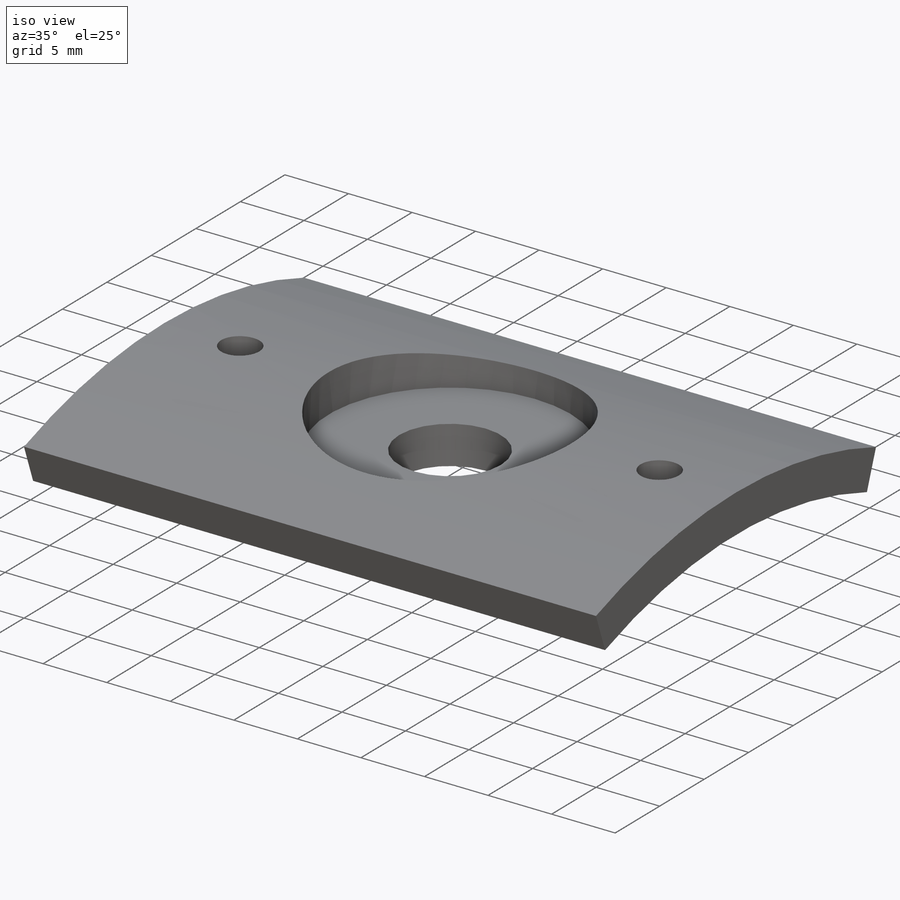
[diagram: iso view]
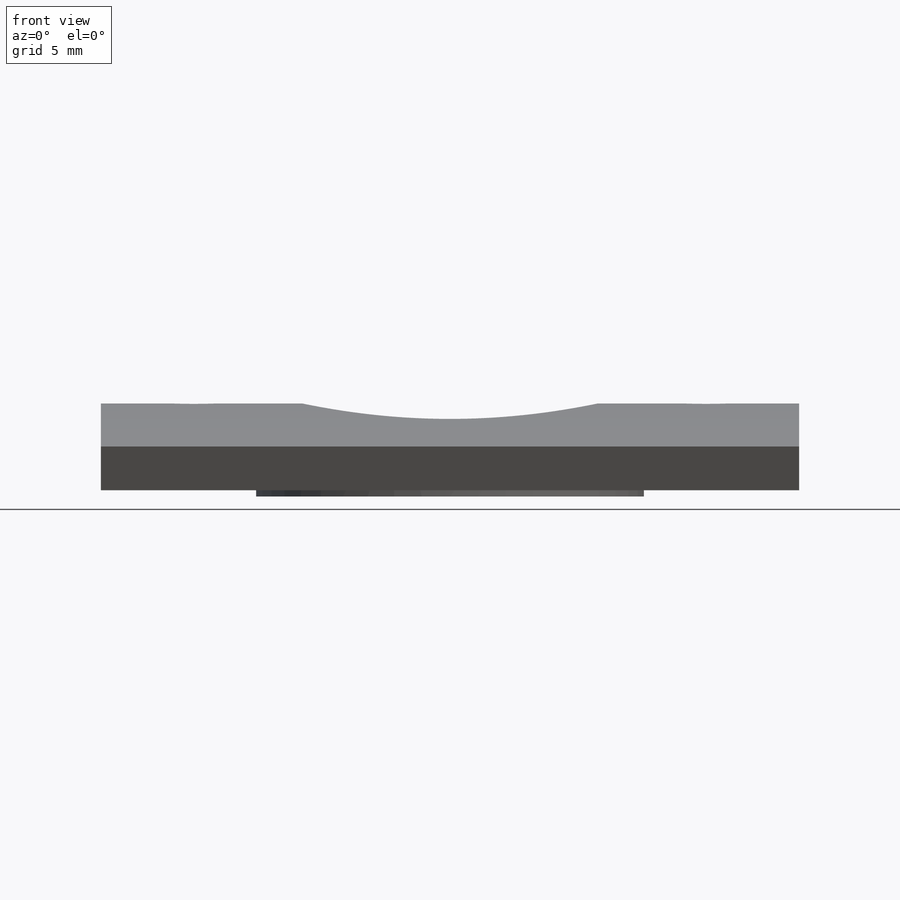
[diagram: front view]
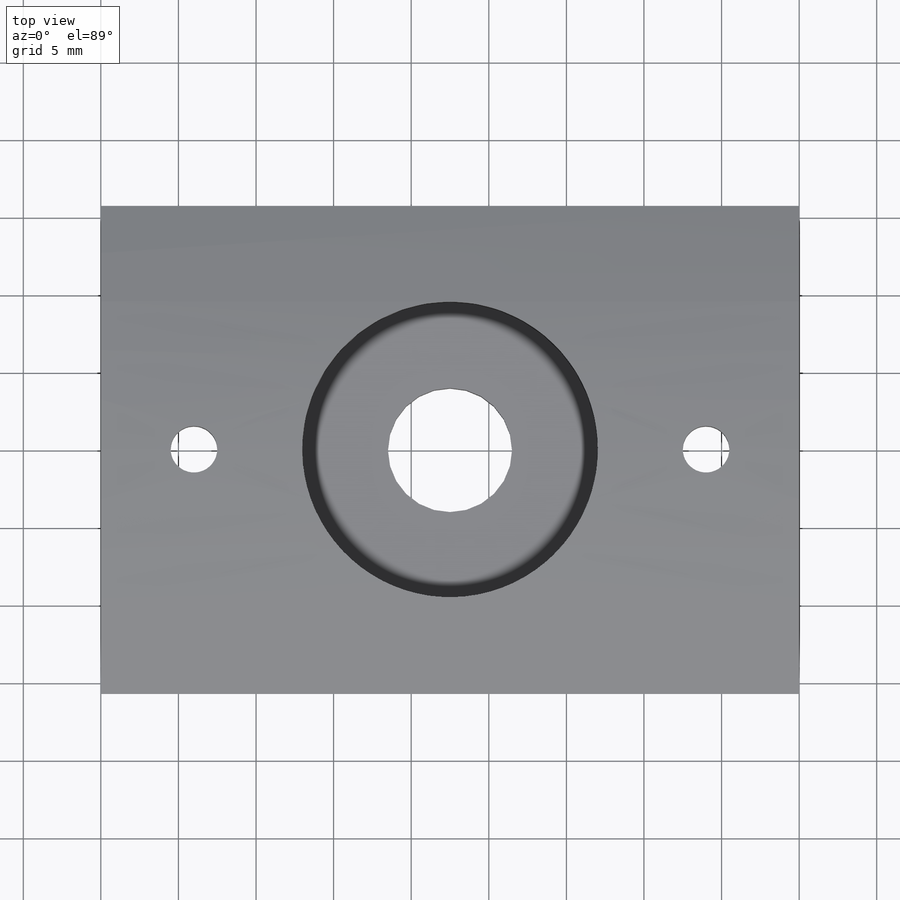
[diagram: top view]
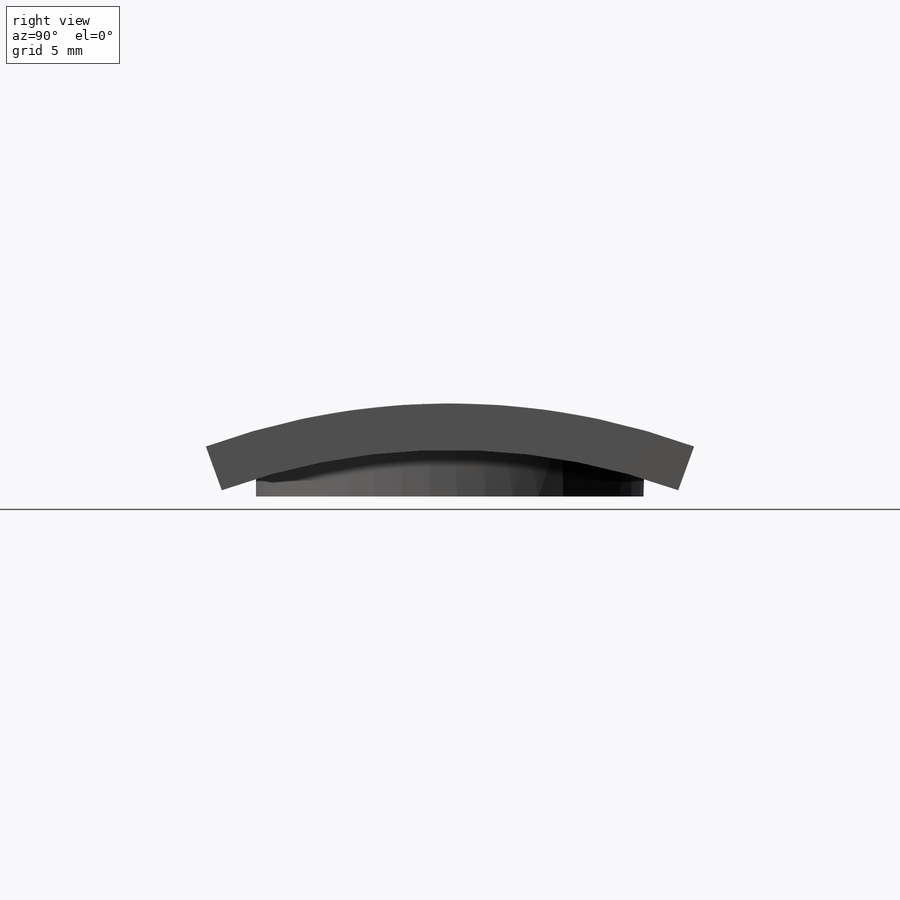
[diagram: right view]
SOLIDWORKS PART (.sldprt)
format: sldprt  version: not decoded by parser v0  size: 200,192 bytes
history: native  units: mm
features: sketch x5, cut_extrude x3, extrude x2, material x1, plane x1 (+12 scaffold rows collapsed)
feature tree (24):
  scaffold x12  (default folders/planes/origin — collapsed)
  material  "Material <not specified>"
  sketch  "Sketch1"  dims[c1.D2=46.0mm c1.D1=46.0mm c1.D3=3.0mm c2.D3=35.0deg c2.D1=3.0mm]
  extrude  "Boss-Extrude1"  Depth=45mm
  plane  "Plane1"  Offset=3mm
  sketch  "Sketch2"  dims[D1=22.5mm]
  extrude  "Boss-Extrude2"  Depth=3mm
  sketch  "Sketch3"  dims[D2=19.05mm D1=22.5mm]
  cut_extrude  "Cut-Extrude1"  Depth=14mm
  sketch  "Sketch4"  dims[D1=8.0mm]
  cut_extrude  "Cut-Extrude2"  Depth=14mm
  sketch  "Sketch5"  dims[c1.D2=3.0mm c1.D1=6.0mm c2.D2=~14.839964mm]
  cut_extrude  "Cut-Extrude3"  Depth=14mm
decode coverage: 10 of 10 modeling features carry decoded parameters
note: ~ marks probable driven/reference dimensions
note: suppression state not decoded; provenance and decode notes live in map.json
